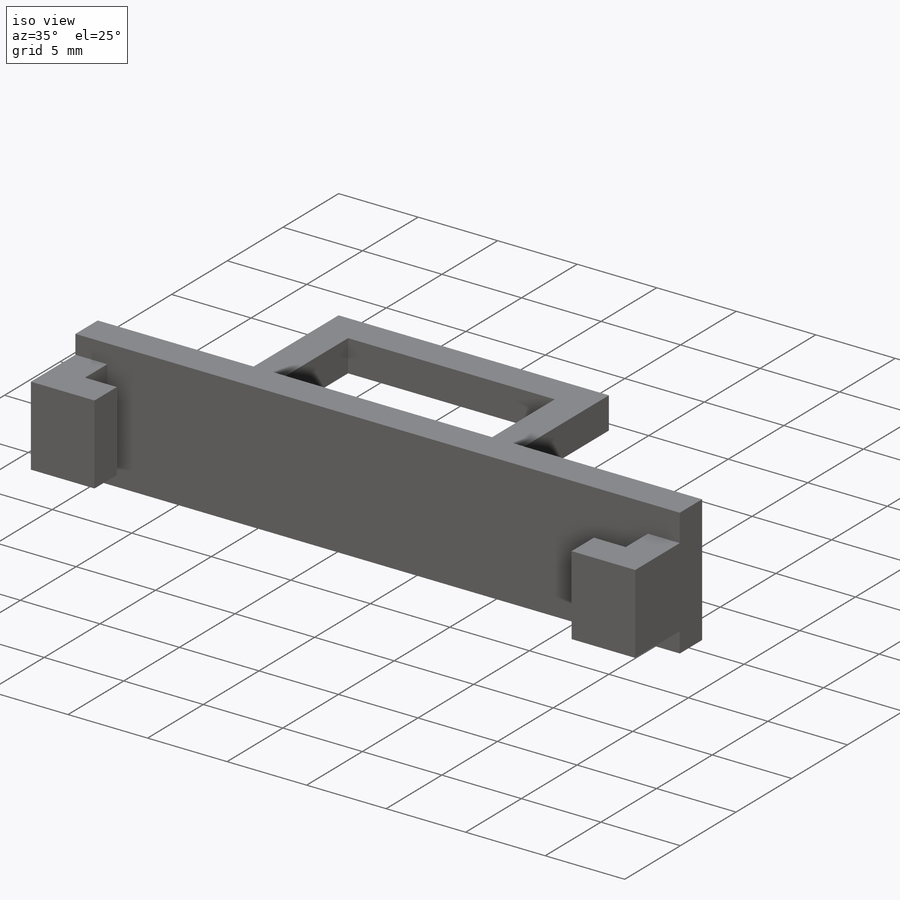
[diagram: iso view]
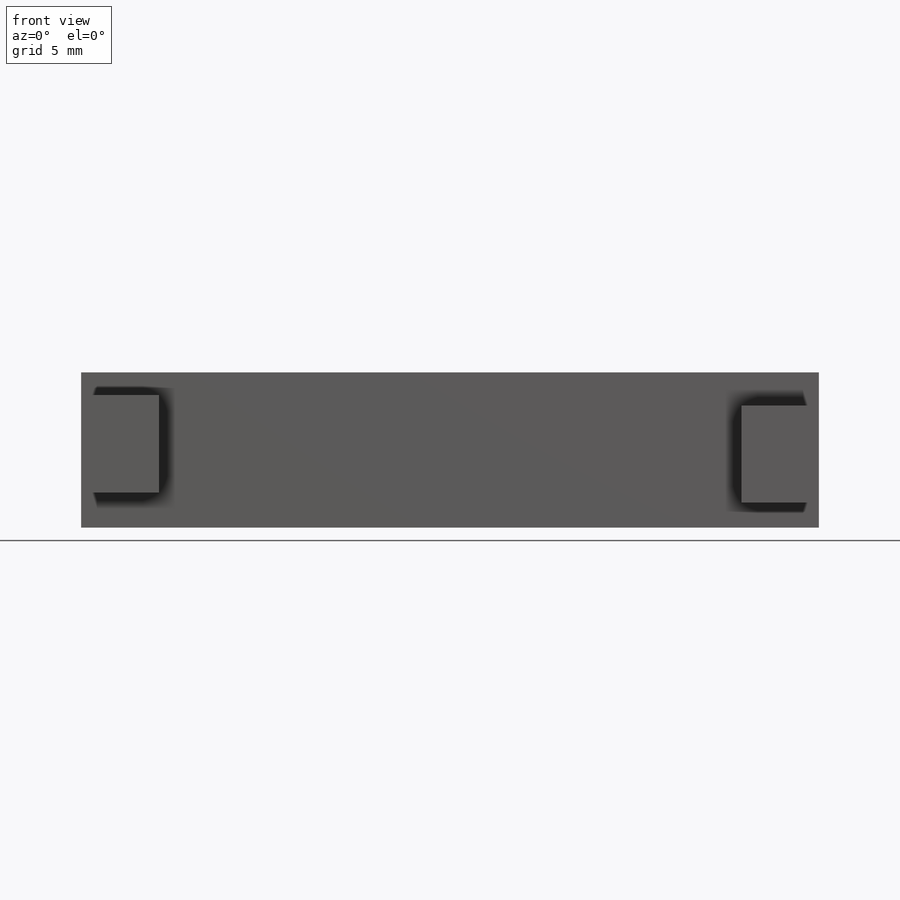
[diagram: front view]
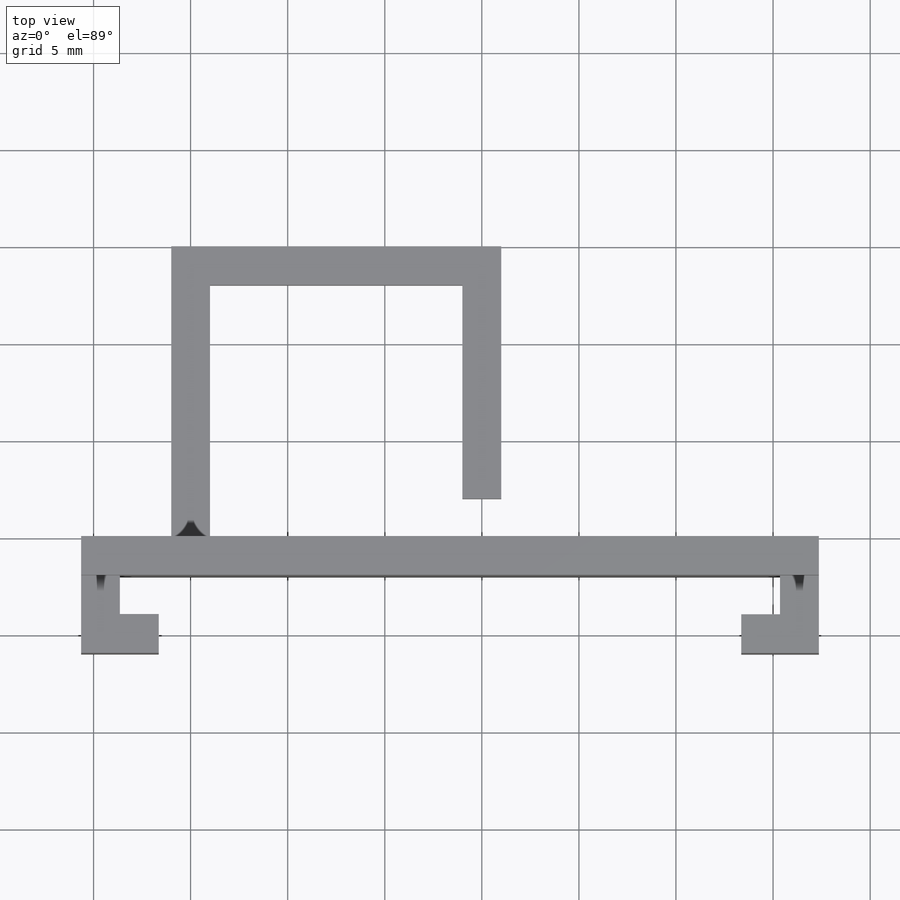
[diagram: top view]
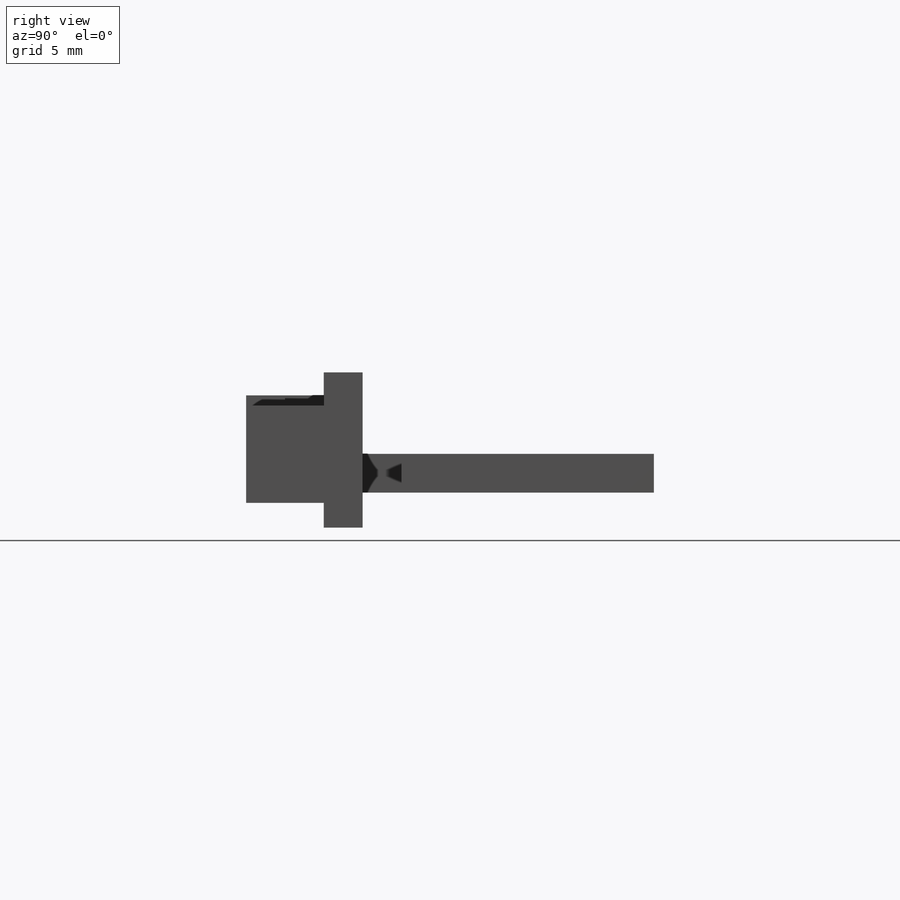
[diagram: right view]
SOLIDWORKS PART (.sldprt)
format: sldprt  version: not decoded by parser v0  size: 226,304 bytes
history: native  units: mm
features: sketch x8, extrude x8, material x1 (+13 scaffold rows collapsed)
feature tree (30):
  scaffold x13  (default folders/planes/origin — collapsed)
  material  "Material <not specified>"
  sketch  "Sketch1"  dims[D1=2.0mm D2=2.0mm]
  extrude  "Boss-Extrude1"  Depth=15mm
  sketch  "Sketch4"  dims[D1=2.0mm]
  extrude  "Boss-Extrude3"  Depth=15mm
  sketch  "Sketch5"  dims[D1=2.0mm]
  extrude  "Boss-Extrude4"  Depth=11mm
  sketch  "Sketch6"  dims[D1=38.0mm D2=8.0mm]
  extrude  "Boss-Extrude5"  Depth=2mm
  sketch  "Sketch8"  dims[D1=4.0mm D2=5.0mm D3=4.0mm]
  extrude  "Boss-Extrude6"  Depth=2mm
  sketch  "Sketch9"  dims[D1=5.0mm D2=4.0mm]
  extrude  "Boss-Extrude7"  Depth=2mm
  sketch  "Sketch10"  dims[D1=2.0mm]
  extrude  "Boss-Extrude8"  Depth=2mm
  sketch  "Sketch11"  dims[D1=2.0mm]
  extrude  "Boss-Extrude9"  Depth=2mm
decode coverage: 16 of 16 modeling features carry decoded parameters
note: suppression state not decoded; provenance and decode notes live in map.json
